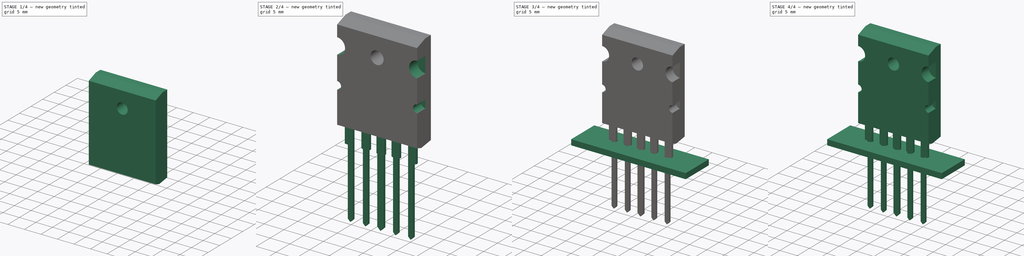
[diagram: build sequence overview — one tinted view per stage of 4, left to right]
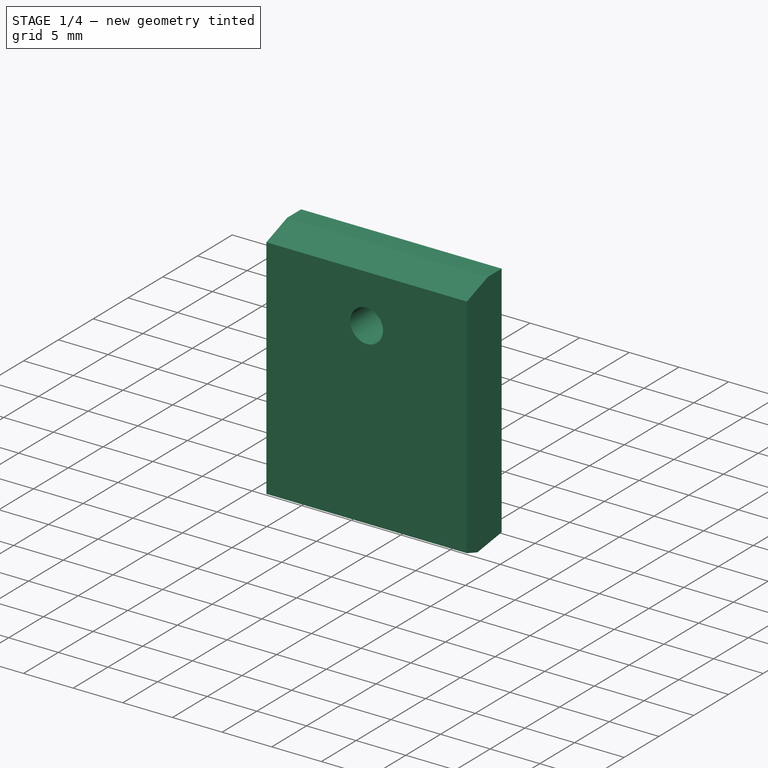
[diagram: stage 1 of 4 — iso view after this stage's code; geometry added in this stage tinted green]
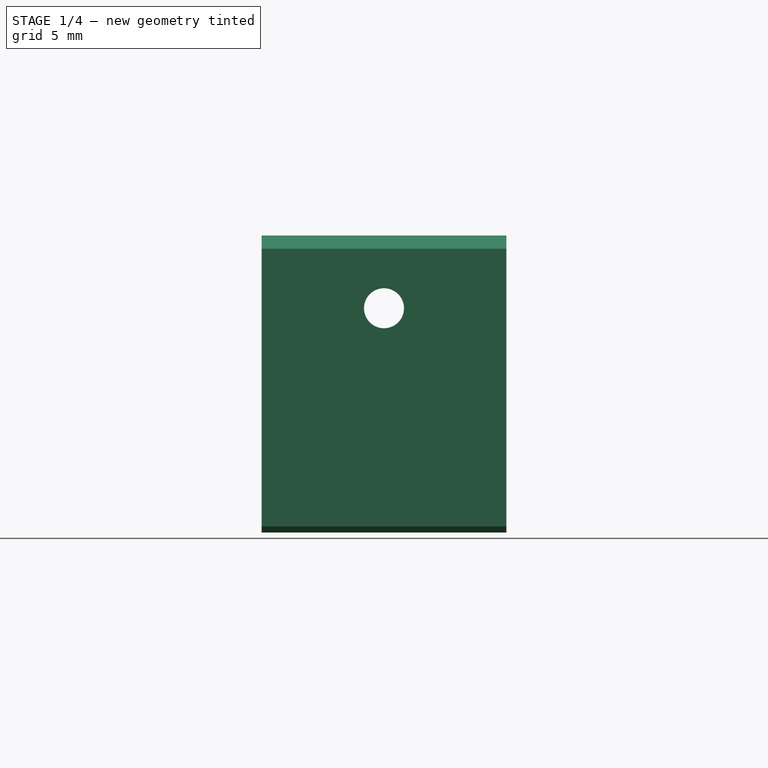
[diagram: stage 1 of 4 — front view after this stage's code; geometry added in this stage tinted green]
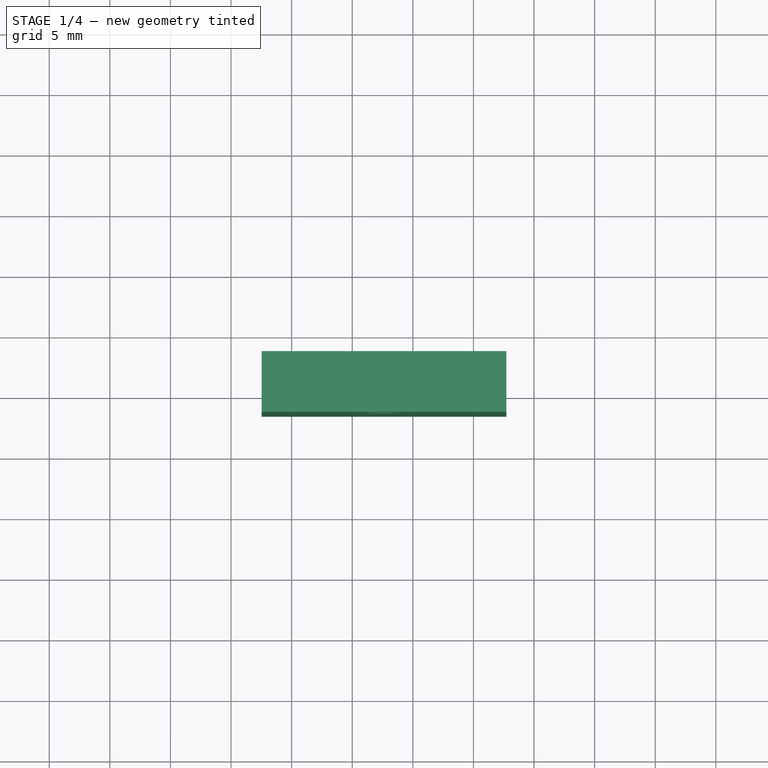
[diagram: stage 1 of 4 — top view after this stage's code; geometry added in this stage tinted green]
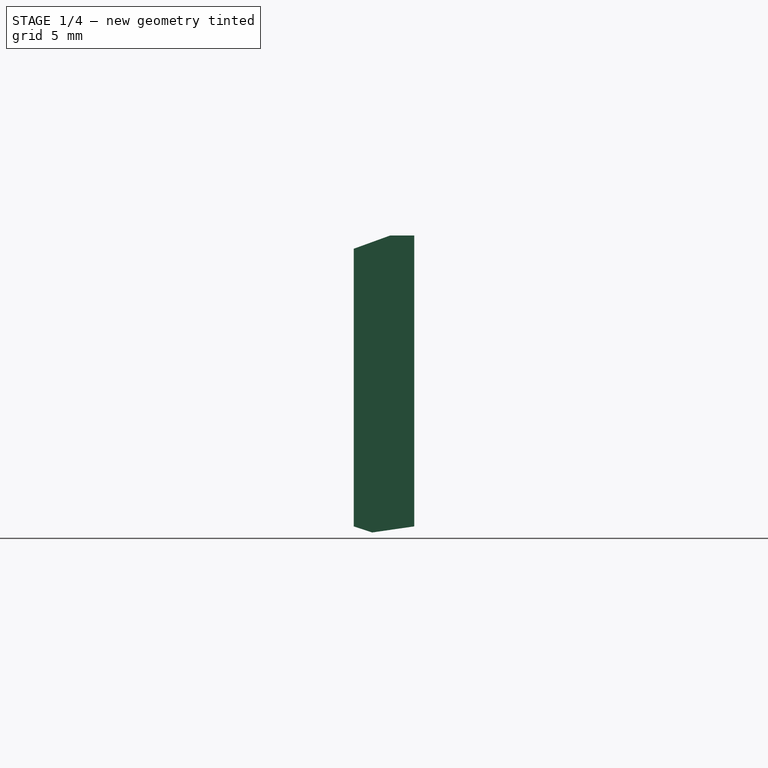
[diagram: stage 1 of 4 — right view after this stage's code; geometry added in this stage tinted green]
FCSTD DOCUMENT  (FreeCAD 0.16R6712 (Git))
Label: TO-264-5_Vertical
License: All rights reserved
LicenseURL: http://en.wikipedia.org/wiki/All_rights_reserved
objects: Part::FeaturePython×7, Sketcher::SketchObject×6, PartDesign::Pad×3, PartDesign::Pocket×3, App::DocumentObjectGroup×1, Part::MultiFuse×1
note: 26 computed .brp shape members not serialized (recipe doc carries the construction recipe); baked Part::Feature solids carry a one-line shape summary decoded from their .brp

FEATURE [Sketcher::SketchObject] Sketch001
  Placement = pos=(7.62,0,0) rot=(0.57735,0.57735,0.57735;2.0944rad)
  expr: Placement.Base.x = 2 * 3.81
  expr: Constraints[16] = 20 + 6 - 1.5
  expr: Constraints[13] = (2.5 + 3.1) / 2 + (0.5 + 0.85) / 2
  sketch-geometry (7):
    g0: LineSegment StartX=0 StartY=4 StartZ=0 EndX=-1.525 EndY=4.5 EndZ=0
    g1: LineSegment StartX=-1.525 StartY=4.5 StartZ=0 EndX=-1.525 EndY=27.4081 EndZ=0
    g2: LineSegment StartX=-1.525 StartY=27.4081 StartZ=0 EndX=1.475 EndY=28.5 EndZ=0
    g3: LineSegment StartX=1.475 StartY=28.5 StartZ=0 EndX=3.475 EndY=28.5 EndZ=0
    g4: LineSegment StartX=3.475 StartY=28.5 StartZ=0 EndX=3.475 EndY=4.5 EndZ=0
    g5: LineSegment StartX=3.475 StartY=4.5 StartZ=0 EndX=0 EndY=4 EndZ=0
    g6: LineSegment [constr] StartX=-1.525 StartY=4.5 StartZ=0 EndX=3.475 EndY=4.5 EndZ=0
  constraints (20):
    c: PointOnObject(g0,g-2)
    c: Coincident(g1,g0)
    c: Vertical(g1)
    c: Coincident(g2,g1)
    c: Horizontal(g3)
    c: Coincident(g4,g3)
    c: Vertical(g4)
    c: Coincident(g5,g4)
    c: Coincident(g5,g0)
    c: Coincident(g6,g0)
    c: Coincident(g6,g4)
    c: Horizontal(g6)
    c: Angle(g1,g2) = 1.91986
    c: DistanceX(g0,g4) = 3.475
    c: DistanceX(g1,g3) = 5
    c: DistanceY(g0,g4) = 0.5
    c: DistanceY(g0,g3) = 24.5
    c: Coincident(g2,g3)
    c: DistanceY(g-1,g0) = 4
    c: DistanceX(g2,g3) = 2
FEATURE [PartDesign::Pad] Pad001
  Length = 20.2
  Length2 = 100
  Midplane = true
  Placement = pos=(7.62,0,0) rot=(0.57735,0.57735,0.57735;2.0944rad)
  Sketch = -> Sketch001
  Type = 0
FEATURE [Sketcher::SketchObject] Sketch007
  ExternalGeometry = -> [Pad001]
  Placement = pos=(7.62,3.475,0) rot=(0.57735,0.57735,0.57735;4.18879rad)
  Support = -> Pad001 [Face5]
  expr: Placement.Base.x = 2 * 3.81
  expr: Constraints[48] = 7.2 / 2
  sketch-geometry (18):
    g0: LineSegment StartX=7.18 StartY=9 StartZ=0 EndX=7.18 EndY=-9 EndZ=0
    g1: LineSegment [constr] StartX=7.18 StartY=-9 StartZ=0 EndX=27.5 EndY=-9 EndZ=0
    g2: LineSegment StartX=27.5 StartY=-9 StartZ=0 EndX=27.5 EndY=-6 EndZ=0
    g3: LineSegment StartX=27.5 StartY=-6 StartZ=0 EndX=27.25 EndY=-6 EndZ=0
    g4: LineSegment StartX=27.25 StartY=-6 StartZ=0 EndX=27.25 EndY=6 EndZ=0
    g5: LineSegment StartX=27.25 StartY=6 StartZ=0 EndX=27.5 EndY=6 EndZ=0
    g6: LineSegment StartX=27.5 StartY=6 StartZ=0 EndX=27.5 EndY=9 EndZ=0
    g7: LineSegment [constr] StartX=27.5 StartY=9 StartZ=0 EndX=7.18 EndY=9 EndZ=0
    g8: ArcOfCircle CenterX=22.5 CenterY=9 CenterZ=0 NormalX=0 NormalY=0 NormalZ=1 Radius=1.5 StartAngle=3.14159 EndAngle=6.28319
    g9: LineSegment StartX=21 StartY=9 StartZ=0 EndX=7.18 EndY=9 EndZ=0
    g10: LineSegment StartX=24 StartY=9 StartZ=0 EndX=27.5 EndY=9 EndZ=0
    g11: ArcOfCircle CenterX=22.5 CenterY=-9 CenterZ=0 NormalX=0 NormalY=0 NormalZ=1 Radius=1.5 StartAngle=0 EndAngle=3.14159
    g12: LineSegment StartX=21 StartY=-9 StartZ=0 EndX=7.18 EndY=-9 EndZ=0
    g13: LineSegment StartX=24 StartY=-9 StartZ=0 EndX=27.5 EndY=-9 EndZ=0
    g14: LineSegment [constr] StartX=22.5 StartY=9 StartZ=0 EndX=22.5 EndY=-9 EndZ=0
    g15: GeomPoint [constr] X=27.25 Y=0 Z=0
    g16: GeomPoint [constr] X=7.18 Y=0 Z=0
    g17: Circle CenterX=22.5 CenterY=0 CenterZ=0 NormalX=0 NormalY=0 NormalZ=1 Radius=3.6
  constraints (49):
    c: Vertical(g0)
    c: Coincident(g1,g0)
    c: Coincident(g2,g1)
    c: Vertical(g2)
    c: Coincident(g3,g2)
    c: Coincident(g4,g3)
    c: Vertical(g4)
    c: Coincident(g5,g4)
    c: Horizontal(g5)
    c: Coincident(g6,g5)
    c: Vertical(g6)
    c: Coincident(g7,g6)
    c: Coincident(g7,g0)
    c: Horizontal(g3)
    c: PointOnObject(g8,g7)
    c: PointOnObject(g8,g7)
    c: PointOnObject(g8,g7)
    c: Coincident(g9,g8)
    c: Coincident(g9,g0)
    c: Horizontal(g9)
    c: Coincident(g10,g8)
    c: Coincident(g10,g6)
    c: PointOnObject(g11,g1)
    c: PointOnObject(g11,g1)
    c: PointOnObject(g11,g1)
    c: Coincident(g12,g11)
    c: Coincident(g12,g0)
    c: Horizontal(g12)
    c: Coincident(g13,g11)
    c: Coincident(g13,g1)
    c: Equal(g8,g11)
    c: Coincident(g14,g8)
    c: Coincident(g14,g11)
    c: Vertical(g14)
    c: PointOnObject(g15,g-1)
    c: Symmetric(g4,g4,g15)
    c: DistanceY(g4,g4) = 12
    c: DistanceY(g0,g0) = 18
    c: PointOnObject(g16,g-1)
    c: Symmetric(g0,g0,g16)
    c: Radius(g8) = 1.5
    c: DistanceX(g8,g-3) = 6
    c: DistanceX(g0,g-3) = 21.32
    c: DistanceX(g1,g-3) = 1
    c: Equal(g3,g5)
    c: DistanceX(g5,g5) = 0.25
    c: PointOnObject(g17,g14)
    c: Symmetric(g14,g14,g17)
    c: Radius(g17) = 3.6
FEATURE [PartDesign::Pocket] Pocket
  Length = 0.5
  Placement = pos=(7.62,0,0) rot=(0.57735,0.57735,0.57735;2.0944rad)
  Sketch = -> Sketch007
  Type = 0
FEATURE [Sketcher::SketchObject] Sketch008
  ExternalGeometry = -> [Pocket]
  Placement = pos=(7.62,-1.525,0) rot=(0.57735,0.57735,-0.57735;2.0944rad)
  Support = -> Pocket [Face3]
  expr: Constraints[1] = 3.3 / 2
  sketch-geometry (1):
    g0: Circle CenterX=-22.5 CenterY=0 CenterZ=0 NormalX=0 NormalY=0 NormalZ=1 Radius=1.65
  constraints (3):
    c: PointOnObject(g0,g-1)
    c: Radius(g0) = 1.65
    c: DistanceX(g-3,g0) = 6
FEATURE [PartDesign::Pocket] Pocket001
  Length = 5
  Placement = pos=(7.62,0,0) rot=(0.57735,0.57735,0.57735;2.0944rad)
  Sketch = -> Sketch008
  Type = 1
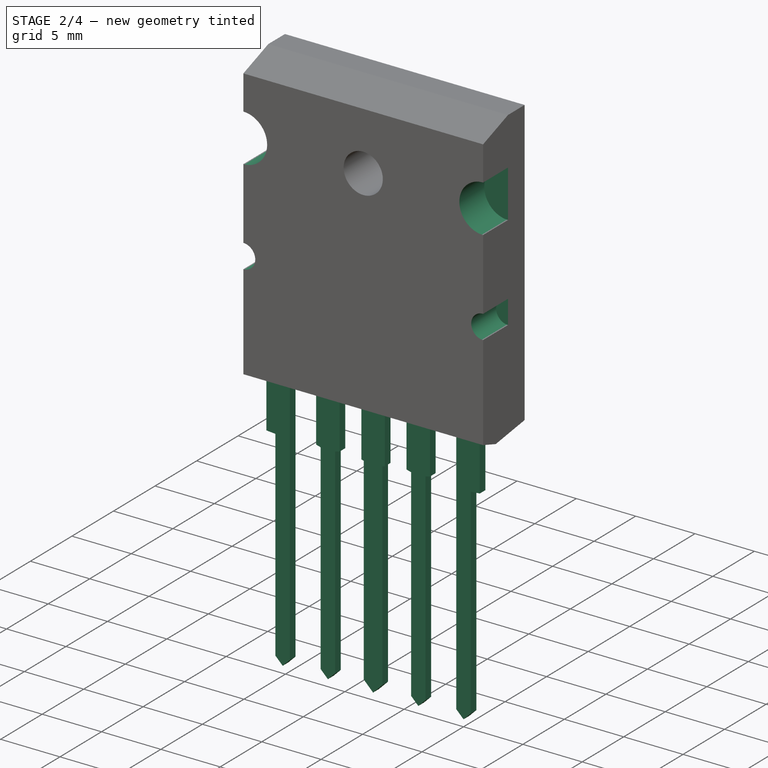
[diagram: stage 2 of 4 — iso view after this stage's code; geometry added in this stage tinted green]
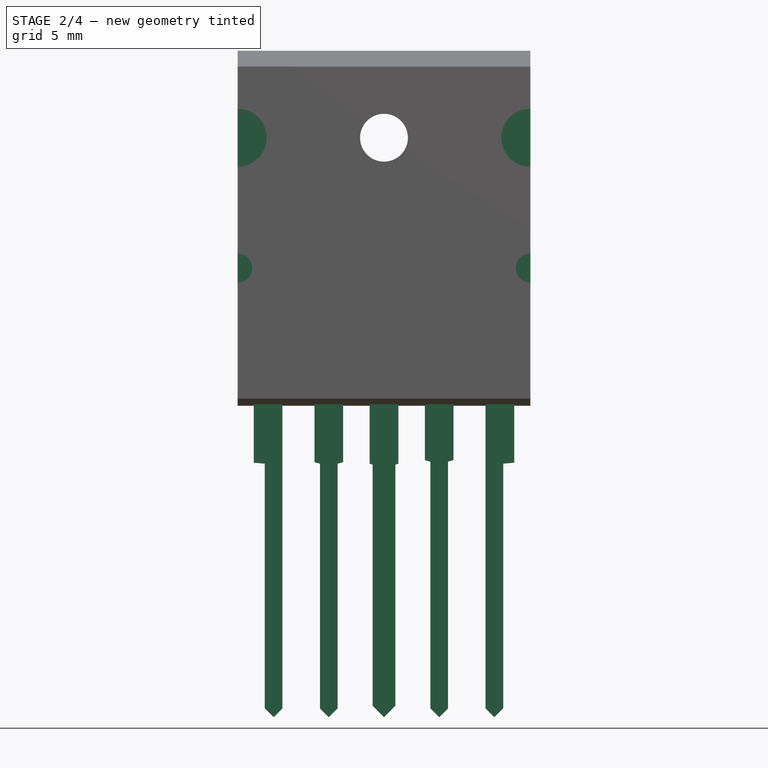
[diagram: stage 2 of 4 — front view after this stage's code; geometry added in this stage tinted green]
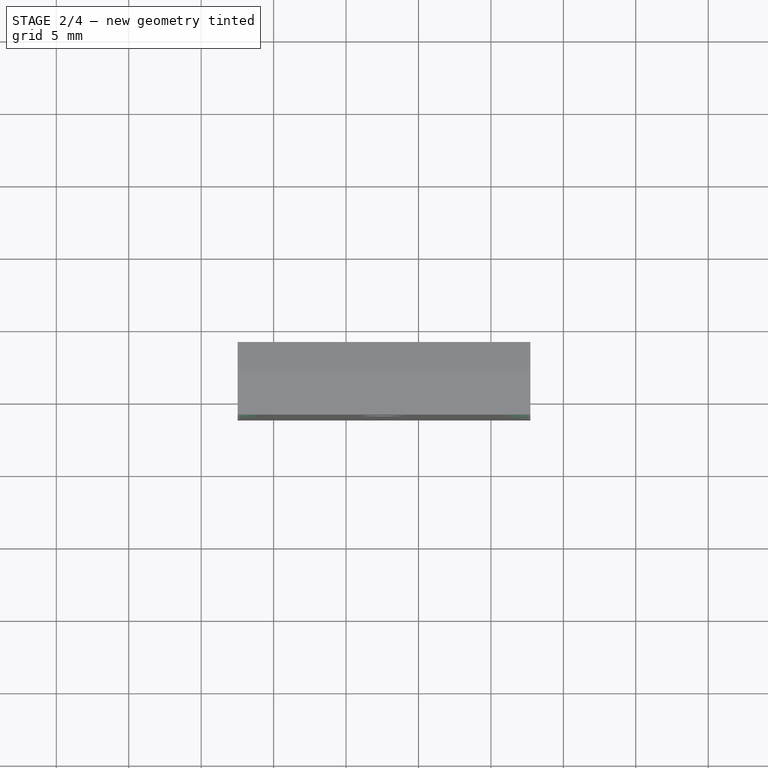
[diagram: stage 2 of 4 — top view after this stage's code; geometry added in this stage tinted green]
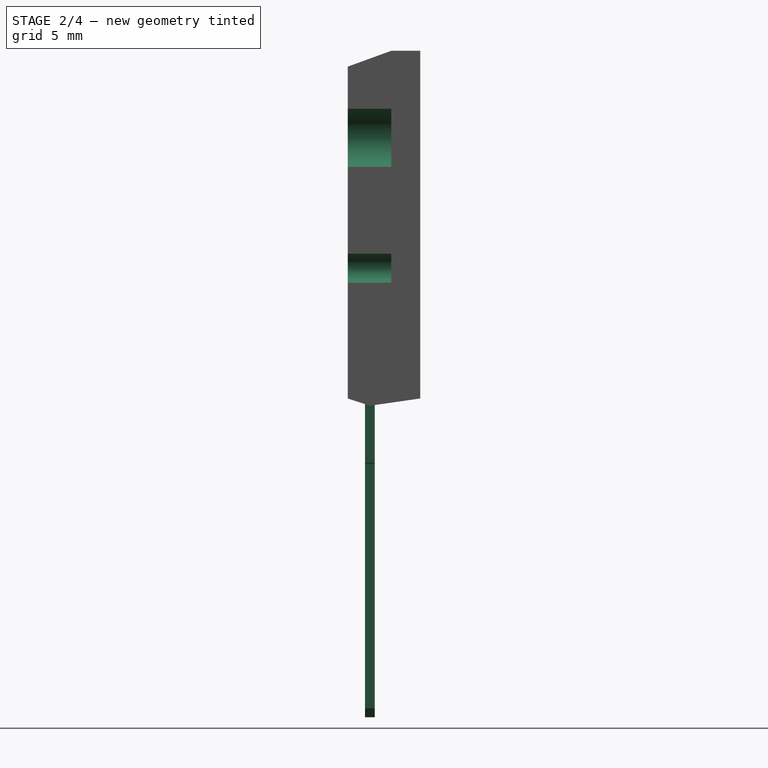
[diagram: stage 2 of 4 — right view after this stage's code; geometry added in this stage tinted green]
FEATURE [Sketcher::SketchObject] Sketch
  Placement = pos=(0,0,0) rot=(1,0,0;1.5708rad)
  expr: Constraints[24] = 20 - 2.5
  expr: Constraints[21] = 5
  sketch-geometry (85):
    g0: LineSegment [constr] StartX=-0.6095 StartY=0 StartZ=0 EndX=0.6095 EndY=0 EndZ=0
    g1: LineSegment [constr] StartX=-1.3715 StartY=0.0666664 StartZ=0 EndX=0.6095 EndY=0.0666664 EndZ=0
    g2: GeomPoint [constr] X=0 Y=0.0842038 Z=0
    g3: LineSegment [constr] StartX=-0.6095 StartY=-16.8905 StartZ=0 EndX=0.6095 EndY=-16.8905 EndZ=0
    g4: GeomPoint [constr] X=0 Y=-16.8905 Z=0
    g5: LineSegment StartX=-1.3715 StartY=0.0666664 StartZ=0 EndX=-0.6095 EndY=0 EndZ=0
    g6: LineSegment StartX=-0.6095 StartY=0 StartZ=0 EndX=-0.6095 EndY=-16.8905 EndZ=0
    g7: LineSegment StartX=-0.6095 StartY=-16.8905 StartZ=0 EndX=0 EndY=-17.5 EndZ=0
    g8: LineSegment StartX=0 StartY=-17.5 StartZ=0 EndX=0.6095 EndY=-16.8905 EndZ=0
    g9: LineSegment StartX=0.6095 StartY=-16.8905 StartZ=0 EndX=0.6095 EndY=0 EndZ=0
    g10: LineSegment StartX=0.6095 StartY=0 StartZ=0 EndX=0.6095 EndY=0.0666664 EndZ=0
    g11: LineSegment StartX=0.6095 StartY=0.0666664 StartZ=0 EndX=0.6095 EndY=5 EndZ=0
    g12: LineSegment StartX=0.6095 StartY=5 StartZ=0 EndX=-1.3715 EndY=5 EndZ=0
    g13: LineSegment StartX=-1.3715 StartY=5 StartZ=0 EndX=-1.3715 EndY=0.0666664 EndZ=0
    g14: LineSegment [constr] StartX=0 StartY=-17.5 StartZ=0 EndX=0 EndY=0.0842038 EndZ=0
    g15: LineSegment [constr] StartX=3.2005 StartY=0 StartZ=0 EndX=4.4195 EndY=0 EndZ=0
    g16: LineSegment [constr] StartX=2.8195 StartY=0.102089 StartZ=0 EndX=4.8005 EndY=0.102089 EndZ=0
    g17: GeomPoint [constr] X=3.81 Y=0.102089 Z=0
    g18: LineSegment [constr] StartX=3.2005 StartY=-16.8905 StartZ=0 EndX=4.4195 EndY=-16.8905 EndZ=0
    g19: GeomPoint [constr] X=3.81 Y=-16.8905 Z=0
    g20: LineSegment StartX=2.8195 StartY=0.102089 StartZ=0 EndX=3.2005 EndY=0 EndZ=0
    g21: LineSegment StartX=3.2005 StartY=0 StartZ=0 EndX=3.2005 EndY=-16.8905 EndZ=0
    g22: LineSegment StartX=3.2005 StartY=-16.8905 StartZ=0 EndX=3.81 EndY=-17.5 EndZ=0
    g23: LineSegment StartX=3.81 StartY=-17.5 StartZ=0 EndX=4.4195 EndY=-16.8905 EndZ=0
    g24: LineSegment StartX=4.4195 StartY=-16.8905 StartZ=0 EndX=4.4195 EndY=0 EndZ=0
    g25: LineSegment StartX=4.4195 StartY=0 StartZ=0 EndX=4.8005 EndY=0.102089 EndZ=0
    g26: LineSegment StartX=4.8005 StartY=0.102089 StartZ=0 EndX=4.8005 EndY=5 EndZ=0
    g27: LineSegment StartX=4.8005 StartY=5 StartZ=0 EndX=2.8195 EndY=5 EndZ=0
    g28: LineSegment StartX=2.8195 StartY=5 StartZ=0 EndX=2.8195 EndY=0.102089 EndZ=0
    g29: LineSegment [constr] StartX=3.81 StartY=-17.5 StartZ=0 EndX=3.81 EndY=0.102089 EndZ=0
    g30: LineSegment [constr] StartX=14.6305 StartY=0 StartZ=0 EndX=15.8495 EndY=0 EndZ=0
    g31: LineSegment [constr] StartX=14.6305 StartY=0.0666664 StartZ=0 EndX=16.6115 EndY=0.0666664 EndZ=0
    g32: GeomPoint [constr] X=15.24 Y=0.0842078 Z=0
    g33: LineSegment [constr] StartX=14.6305 StartY=-16.8905 StartZ=0 EndX=15.8495 EndY=-16.8905 EndZ=0
    g34: GeomPoint [constr] X=15.24 Y=-16.8905 Z=0
    g35: LineSegment StartX=14.6305 StartY=0.0666664 StartZ=0 EndX=14.6305 EndY=0 EndZ=0
    g36: LineSegment StartX=14.6305 StartY=0 StartZ=0 EndX=14.6305 EndY=-16.8905 EndZ=0
    g37: LineSegment StartX=14.6305 StartY=-16.8905 StartZ=0 EndX=15.24 EndY=-17.5 EndZ=0
    g38: LineSegment StartX=15.24 StartY=-17.5 StartZ=0 EndX=15.8495 EndY=-16.8905 EndZ=0
    g39: LineSegment StartX=15.8495 StartY=-16.8905 StartZ=0 EndX=15.8495 EndY=0 EndZ=0
    g40: LineSegment StartX=15.8495 StartY=0 StartZ=0 EndX=16.6115 EndY=0.0666664 EndZ=0
    g41: LineSegment StartX=16.6115 StartY=0.0666664 StartZ=0 EndX=16.6115 EndY=5 EndZ=0
    g42: LineSegment StartX=16.6115 StartY=5 StartZ=0 EndX=14.6305 EndY=5 EndZ=0
    g43: LineSegment StartX=14.6305 StartY=5 StartZ=0 EndX=14.6305 EndY=0.0666664 EndZ=0
    g44: LineSegment [constr] StartX=15.24 StartY=-17.5 StartZ=0 EndX=15.24 EndY=0.0842078 EndZ=0
    g45: GeomPoint [constr] X=3.81 Y=0 Z=0
    g46: GeomPoint [constr] X=15.24 Y=0 Z=0
    g47: LineSegment [constr] StartX=-1.3715 StartY=5 StartZ=0 EndX=14.6305 EndY=5 EndZ=0
    g48: GeomPoint [constr] X=0 Y=0 Z=0
    g49: LineSegment [constr] StartX=6.83301 StartY=-0.0599057 StartZ=0 EndX=8.40699 EndY=-0.0599057 EndZ=0
    g50: LineSegment [constr] StartX=6.6295 StartY=-0.00537522 StartZ=0 EndX=8.6105 EndY=-0.00537522 EndZ=0
    g51: GeomPoint [constr] X=7.62 Y=-0.00537522 Z=0
    g52: LineSegment [constr] StartX=6.83301 StartY=-16.713 StartZ=0 EndX=8.40699 EndY=-16.713 EndZ=0
    g53: GeomPoint [constr] X=7.62 Y=-16.713 Z=0
    g54: LineSegment StartX=6.6295 StartY=-0.00537522 StartZ=0 EndX=6.83301 EndY=-0.0599057 EndZ=0
    g55: LineSegment StartX=6.83301 StartY=-0.0599057 StartZ=0 EndX=6.83301 EndY=-16.713 EndZ=0
    g56: LineSegment StartX=6.83301 StartY=-16.713 StartZ=0 EndX=7.62 EndY=-17.5 EndZ=0
    g57: LineSegment StartX=7.62 StartY=-17.5 StartZ=0 EndX=8.40699 EndY=-16.713 EndZ=0
    g58: LineSegment StartX=8.40699 StartY=-16.713 StartZ=0 EndX=8.40699 EndY=-0.0599057 EndZ=0
    g59: LineSegment StartX=8.40699 StartY=-0.0599057 StartZ=0 EndX=8.6105 EndY=-0.00537522 EndZ=0
    g60: LineSegment StartX=8.6105 StartY=-0.00537522 StartZ=0 EndX=8.6105 EndY=4.89285 EndZ=0
    g61: LineSegment StartX=8.6105 StartY=4.89285 StartZ=0 EndX=6.6295 EndY=4.89285 EndZ=0
    g62: LineSegment StartX=6.6295 StartY=4.89285 StartZ=0 EndX=6.6295 EndY=-0.00537522 EndZ=0
    g63: LineSegment [constr] StartX=7.62 StartY=-17.5 StartZ=0 EndX=7.62 EndY=-0.00537522 EndZ=0
    g64: GeomPoint [constr] X=7.62 Y=-0.0599057 Z=0
    g65: LineSegment [constr] StartX=10.8197 StartY=0.14073 StartZ=0 EndX=12.0403 EndY=0.14073 EndZ=0
    g66: LineSegment [constr] StartX=10.4395 StartY=0.242606 StartZ=0 EndX=12.4205 EndY=0.242606 EndZ=0
    g67: GeomPoint [constr] X=11.43 Y=0.242606 Z=0
    g68: LineSegment [constr] StartX=10.8197 StartY=-16.8897 StartZ=0 EndX=12.0403 EndY=-16.8897 EndZ=0
    g69: GeomPoint [constr] X=11.43 Y=-16.8897 Z=0
    g70: LineSegment StartX=10.4395 StartY=0.242606 StartZ=0 EndX=10.8197 EndY=0.14073 EndZ=0
    g71: LineSegment StartX=10.8197 StartY=0.14073 StartZ=0 EndX=10.8197 EndY=-16.8897 EndZ=0
    g72: LineSegment StartX=10.8197 StartY=-16.8897 StartZ=0 EndX=11.43 EndY=-17.5 EndZ=0
    g73: LineSegment StartX=11.43 StartY=-17.5 StartZ=0 EndX=12.0403 EndY=-16.8897 EndZ=0
    g74: LineSegment StartX=12.0403 StartY=-16.8897 StartZ=0 EndX=12.0403 EndY=0.14073 EndZ=0
    g75: LineSegment StartX=12.0403 StartY=0.14073 StartZ=0 EndX=12.4205 EndY=0.242606 EndZ=0
    g76: LineSegment StartX=12.4205 StartY=0.242606 StartZ=0 EndX=12.4205 EndY=5.13989 EndZ=0
    g77: LineSegment StartX=12.4205 StartY=5.13989 StartZ=0 EndX=10.4395 EndY=5.13989 EndZ=0
    g78: LineSegment StartX=10.4395 StartY=5.13989 StartZ=0 EndX=10.4395 EndY=0.242606 EndZ=0
    g79: LineSegment [constr] StartX=11.43 StartY=-17.5 StartZ=0 EndX=11.43 EndY=0.242606 EndZ=0
    g80: GeomPoint [constr] X=11.43 Y=0.14073 Z=0
    g81: LineSegment [constr] StartX=0 StartY=-17.5 StartZ=0 EndX=3.81 EndY=-17.5 EndZ=0
    g82: LineSegment [constr] StartX=3.81 StartY=-17.5 StartZ=0 EndX=7.62 EndY=-17.5 EndZ=0
    g83: LineSegment [constr] StartX=7.62 StartY=-17.5 StartZ=0 EndX=11.43 EndY=-17.5 EndZ=0
    g84: LineSegment [constr] StartX=11.43 StartY=-17.5 StartZ=0 EndX=15.24 EndY=-17.5 EndZ=0
  constraints (194):
    c: DistanceX(g0,g0) = 1.219
    c: Horizontal(g1)
    c: PointOnObject(g2,g-2)
    c: Horizontal(g3)
    c: Equal(g0,g3) = 0.8
    c: PointOnObject(g4,g-2)
    c: Symmetric(g3,g3,g4)
    c: Coincident(g5,g1)
    c: Coincident(g5,g0)
    c: Coincident(g6,g0)
    c: Coincident(g6,g3)
    c: Coincident(g7,g3)
    c: Coincident(g8,g7)
    c: Coincident(g8,g3)
    c: PointOnObject(g7,g-2)
    c: Coincident(g9,g3)
    c: Coincident(g9,g0)
    c: Coincident(g10,g0)
    c: Coincident(g10,g1)
    c: Horizontal(g12)
    c: Angle(g9,g8) = 2.35619
    c: DistanceY(g-1,g12) = 5
    c: Coincident(g14,g7)
    c: Coincident(g14,g2)
    c: DistanceY(g7,g-1) = 17.5
    c: Horizontal(g15)
    c: Equal(g0,g15) = 0.8
    c: Horizontal(g16)
    c: Symmetric(g16,g16,g17)
    c: Horizontal(g18)
    c: Equal(g15,g18) = 0.8
    c: Symmetric(g18,g18,g19)
    c: Coincident(g20,g16)
    c: Coincident(g20,g15)
    c: Coincident(g21,g15)
    c: Coincident(g21,g18)
    c: Coincident(g22,g18)
    c: Coincident(g23,g22)
    c: Coincident(g23,g18)
    c: Coincident(g24,g18)
    c: Coincident(g24,g15)
    c: Coincident(g25,g24)
    c: Coincident(g25,g16)
    c: Horizontal(g27)
    c: Angle(g20,g28) = 1.8326
    c: Angle(g24,g23) = 2.35619
    c: Coincident(g29,g22)
    c: Coincident(g29,g17)
    c: Horizontal(g30)
    c: Equal(g0,g30) = 0.8
    c: Horizontal(g31)
    c: Horizontal(g33)
    c: Equal(g30,g33) = 0.8
    c: Symmetric(g33,g33,g34)
    c: Coincident(g35,g31)
    c: Coincident(g35,g30)
    c: Coincident(g36,g30)
    c: Coincident(g36,g33)
    c: Coincident(g37,g33)
    c: Coincident(g38,g37)
    c: Coincident(g38,g33)
    c: Coincident(g39,g33)
    c: Coincident(g39,g30)
    c: Coincident(g40,g30)
    c: Coincident(g40,g31)
    c: Horizontal(g42)
    c: Angle(g39,g38) = 2.35619
    c: Coincident(g44,g37)
    c: Coincident(g44,g32)
    c: PointOnObject(g15,g-1)
    c: PointOnObject(g45,g29)
    c: Symmetric(g15,g15,g45)
    c: Vertical(g29)
    c: Vertical(g44)
    c: PointOnObject(g46,g44)
    c: Symmetric(g30,g30,g46)
    c: PointOnObject(g19,g29)
    c: PointOnObject(g34,g44)
    c: DistanceX(g7,g22) = 3.81
    c: PointOnObject(g30,g-1)
    c: Coincident(g47,g12)
    c: Coincident(g47,g42)
    c: Horizontal(g47)
    c: PointOnObject(g27,g47)
    c: Coincident(g1,g13)
    c: Coincident(g12,g13)
    c: Coincident(g11,g12)
    c: Coincident(g1,g11)
    c: Vertical(g11)
    c: Vertical(g13)
    c: Coincident(g42,g43)
    c: Coincident(g41,g42)
    c: Coincident(g26,g27)
    c: Coincident(g27,g28)
    c: Coincident(g16,g28)
    c: Coincident(g16,g26)
    c: Vertical(g26)
    c: Vertical(g28)
    c: Coincident(g31,g43)
    c: Coincident(g31,g41)
    c: Vertical(g43)
    c: Vertical(g41)
    c: DistanceX(g27,g27) = 1.981
    c: DistanceX(g12,g12) = 1.981
    c: Equal(g12,g42)
    c: Horizontal(g0)
    c: PointOnObject(g48,g14)
    c: Symmetric(g0,g0,g48)
    c: Coincident(g48,g-1)
    c: Vertical(g35)
    c: Angle(g41,g40) = 1.65806
    c: Angle(g5,g13) = 1.65806
    c: Vertical(g10)
    c: Horizontal(g49)
    c: Horizontal(g50)
    c: Symmetric(g50,g50,g51)
    c: Horizontal(g52)
    c: Equal(g49,g52) = 0.8
    c: Symmetric(g52,g52,g53)
    c: Coincident(g54,g50)
    c: Coincident(g54,g49)
    c: Coincident(g55,g49)
    c: Coincident(g55,g52)
    c: Coincident(g56,g52)
    c: Coincident(g57,g56)
    c: Coincident(g57,g52)
    c: Coincident(g58,g52)
    c: Coincident(g58,g49)
    c: Coincident(g59,g58)
    c: Coincident(g59,g50)
    c: Horizontal(g61)
    c: Angle(g54,g62) = 1.8326
    c: Angle(g58,g57) = 2.35619
    c: Coincident(g63,g56)
    c: Coincident(g63,g51)
    c: PointOnObject(g64,g63)
    c: Symmetric(g49,g49,g64)
    c: Vertical(g63)
    c: PointOnObject(g53,g63)
    c: Coincident(g60,g61)
    c: Coincident(g61,g62)
    c: Coincident(g50,g62)
    c: Coincident(g50,g60)
    c: Vertical(g60)
    c: Vertical(g62)
    c: Equal(g27,g61) = 1.981
    c: Horizontal(g65)
    c: Horizontal(g66)
    c: Symmetric(g66,g66,g67)
    c: Horizontal(g68)
    c: Equal(g65,g68) = 0.8
    c: Symmetric(g68,g68,g69)
    c: Coincident(g70,g66)
    c: Coincident(g70,g65)
    c: Coincident(g71,g65)
    c: Coincident(g71,g68)
    c: Coincident(g72,g68)
    c: Coincident(g73,g72)
    c: Coincident(g73,g68)
    c: Coincident(g74,g68)
    c: Coincident(g74,g65)
    c: Coincident(g75,g74)
    c: Coincident(g75,g66)
    c: Horizontal(g77)
    c: Angle(g70,g78) = 1.8326
    c: Angle(g74,g73) = 2.35619
    c: Coincident(g79,g72)
    c: Coincident(g79,g67)
    c: PointOnObject(g80,g79)
    c: Symmetric(g65,g65,g80)
    c: Vertical(g79)
    c: PointOnObject(g69,g79)
    c: Coincident(g76,g77)
    c: Coincident(g77,g78)
    c: Coincident(g66,g78)
    c: Coincident(g66,g76)
    c: Vertical(g76)
    c: Vertical(g78)
    c: Equal(g27,g77) = 1.981
    c: Coincident(g81,g7)
    c: Horizontal(g81)
    c: Coincident(g82,g22)
    c: Coincident(g82,g56)
    c: Coincident(g83,g56)
    c: Coincident(g83,g72)
    c: Coincident(g84,g72)
    c: Coincident(g84,g37)
    c: Equal(g81,g82)
    c: Equal(g82,g83)
    c: Equal(g83,g84)
    c: Horizontal(g82)
    c: Horizontal(g83)
    c: Horizontal(g84)
    c: Coincident(g22,g81)
FEATURE [PartDesign::Pad] Pad
  Length = 0.675
  Length2 = 100
  Midplane = true
  Placement = pos=(0,0,0) rot=(1,0,0;1.5708rad)
  Reversed = true
  Sketch = -> Sketch
  Type = 0
  expr: Length = (0.5 + 0.85) / 2
FEATURE [Sketcher::SketchObject] Sketch005
  Placement = pos=(0,3.474,0) rot=(1,0,0;1.5708rad)
  expr: Constraints[8] = 2 * 3.81
  expr: Constraints[9] = 7 / 2
  sketch-geometry (6):
    g0: LineSegment StartX=-1.63 StartY=28 StartZ=0 EndX=16.87 EndY=28 EndZ=0
    g1: LineSegment StartX=16.87 StartY=28 StartZ=0 EndX=16.87 EndY=6 EndZ=0
    g2: LineSegment StartX=16.87 StartY=6 StartZ=0 EndX=-1.63 EndY=6 EndZ=0
    g3: LineSegment StartX=-1.63 StartY=6 StartZ=0 EndX=-1.63 EndY=28 EndZ=0
    g4: Circle CenterX=7.62 CenterY=22.5 CenterZ=0 NormalX=0 NormalY=0 NormalZ=1 Radius=3.5
    g5: LineSegment [constr] StartX=7.62 StartY=22.5 StartZ=0 EndX=7.62 EndY=28 EndZ=0
  constraints (17):
    c: Coincident(g0,g1)
    c: Coincident(g1,g2)
    c: Coincident(g2,g3)
    c: Coincident(g3,g0)
    c: Horizontal(g0)
    c: Horizontal(g2)
    c: Vertical(g1)
    c: Vertical(g3)
    c: DistanceX(g-1,g4) = 7.62
    c: Radius(g4) = 3.5
    c: DistanceY(g-1,g4) = 22.5
    c: Coincident(g5,g4)
    c: Vertical(g5)
    c: Symmetric(g0,g0,g5)
    c: DistanceY(g1,g1) = 22
    c: DistanceX(g0,g0) = 18.5
    c: DistanceY(g5,g5) = 5.5
FEATURE [PartDesign::Pad] Pad003
  Length = 1.9
  Length2 = 100
  Placement = pos=(0,3.474,0) rot=(1,0,0;1.5708rad)
  Sketch = -> Sketch005
  Type = 0
FEATURE [Sketcher::SketchObject] Sketch009
  ExternalGeometry = -> [Pocket001]
  Placement = pos=(7.62,-1.525,0) rot=(0.57735,0.57735,-0.57735;2.0944rad)
  Support = -> Pocket001 [Face3]
  sketch-geometry (10):
    g0: ArcOfCircle CenterX=-22.5 CenterY=10.1 CenterZ=0 NormalX=0 NormalY=0 NormalZ=1 Radius=2 StartAngle=3.14159 EndAngle=6.28319
    g1: LineSegment StartX=-24.5 StartY=10.1 StartZ=0 EndX=-20.5 EndY=10.1 EndZ=0
    g2: LineSegment StartX=-24.5 StartY=-10.1 StartZ=0 EndX=-20.5 EndY=-10.1 EndZ=0
    g3: ArcOfCircle CenterX=-22.5 CenterY=-10.1 CenterZ=0 NormalX=0 NormalY=0 NormalZ=1 Radius=2 StartAngle=0 EndAngle=3.14159
    g4: LineSegment [constr] StartX=-22.5 StartY=10.1 StartZ=0 EndX=-22.5 EndY=-10.1 EndZ=0
    g5: ArcOfCircle CenterX=-13.5 CenterY=10.1 CenterZ=0 NormalX=0 NormalY=0 NormalZ=1 Radius=1 StartAngle=3.14159 EndAngle=6.28319
    g6: LineSegment StartX=-14.5 StartY=10.1 StartZ=0 EndX=-12.5 EndY=10.1 EndZ=0
    g7: LineSegment StartX=-14.5 StartY=-10.1 StartZ=0 EndX=-12.5 EndY=-10.1 EndZ=0
    g8: ArcOfCircle CenterX=-13.5 CenterY=-10.1 CenterZ=0 NormalX=0 NormalY=0 NormalZ=1 Radius=1 StartAngle=0 EndAngle=3.14159
    g9: LineSegment [constr] StartX=-13.5 StartY=10.1 StartZ=0 EndX=-13.5 EndY=-10.1 EndZ=0
  constraints (32):
    c: Horizontal(g1)
    c: PointOnObject(g0,g-3)
    c: Horizontal(g2)
    c: PointOnObject(g3,g2)
    c: Coincident(g3,g2)
    c: Coincident(g3,g2)
    c: Coincident(g4,g0)
    c: Coincident(g4,g3)
    c: Vertical(g4)
    c: PointOnObject(g3,g-4)
    c: Radius(g3) = 2
    c: Equal(g3,g0)
    c: DistanceX(g-5,g3) = 6
    c: Coincident(g6,g5)
    c: Coincident(g6,g5)
    c: PointOnObject(g6,g-3)
    c: Radius(g5) = 1
    c: Horizontal(g7)
    c: PointOnObject(g8,g7)
    c: Coincident(g8,g7)
    c: Coincident(g8,g7)
    c: Equal(g8,g5)
    c: Coincident(g9,g5)
    c: Coincident(g9,g8)
    c: Vertical(g9)
    c: DistanceX(g3,g8) = 9
    c: PointOnObject(g5,g-3)
    c: PointOnObject(g5,g-3)
    c: PointOnObject(g7,g-4)
    c: Coincident(g0,g1)
    c: Coincident(g1,g0)
    c: Symmetric(g1,g1,g0)
FEATURE [PartDesign::Pocket] Pocket002
  Length = 3
  Placement = pos=(7.62,0,0) rot=(0.57735,0.57735,0.57735;2.0944rad)
  Sketch = -> Sketch009
  Type = 0
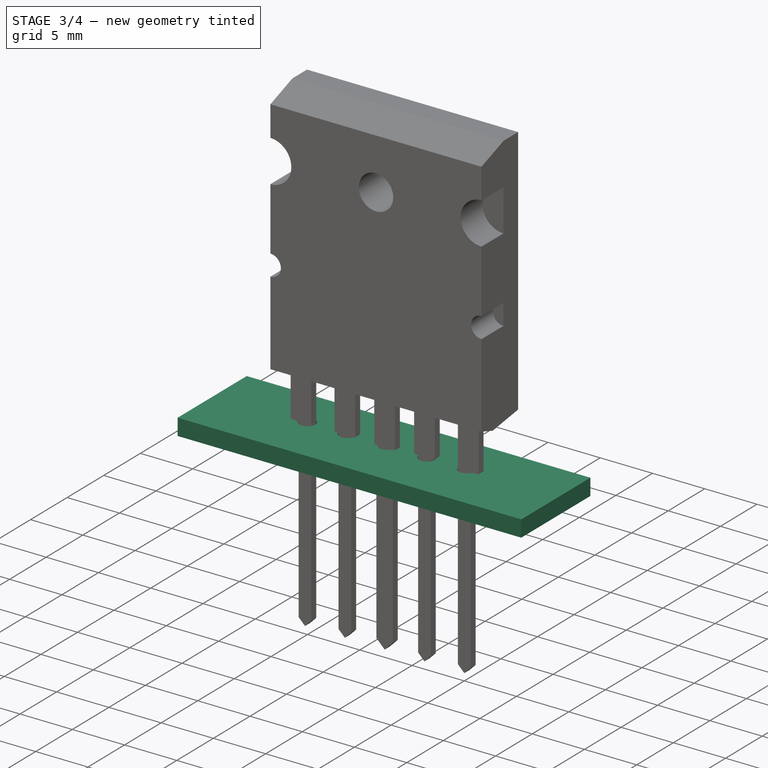
[diagram: stage 3 of 4 — iso view after this stage's code; geometry added in this stage tinted green]
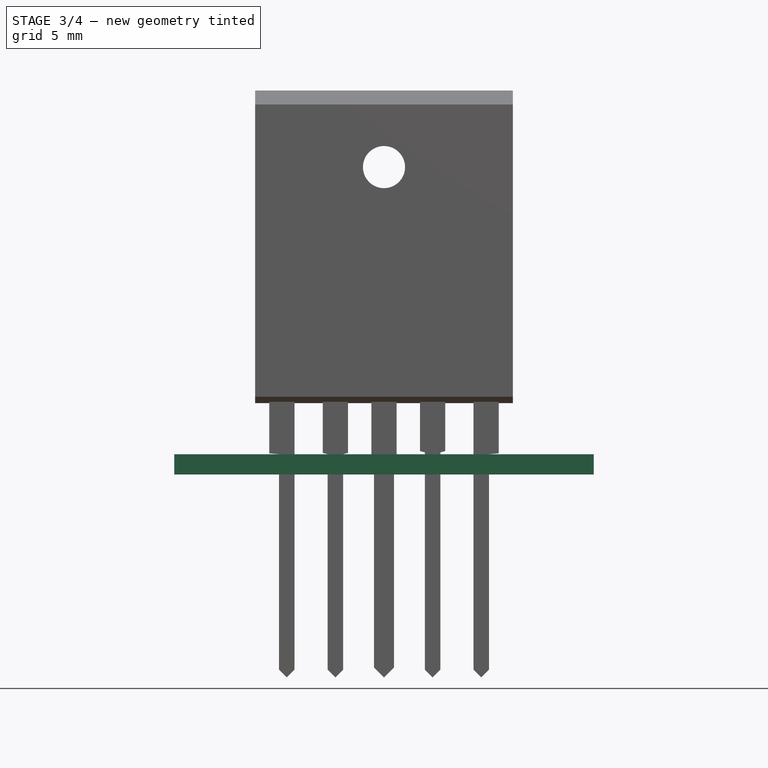
[diagram: stage 3 of 4 — front view after this stage's code; geometry added in this stage tinted green]
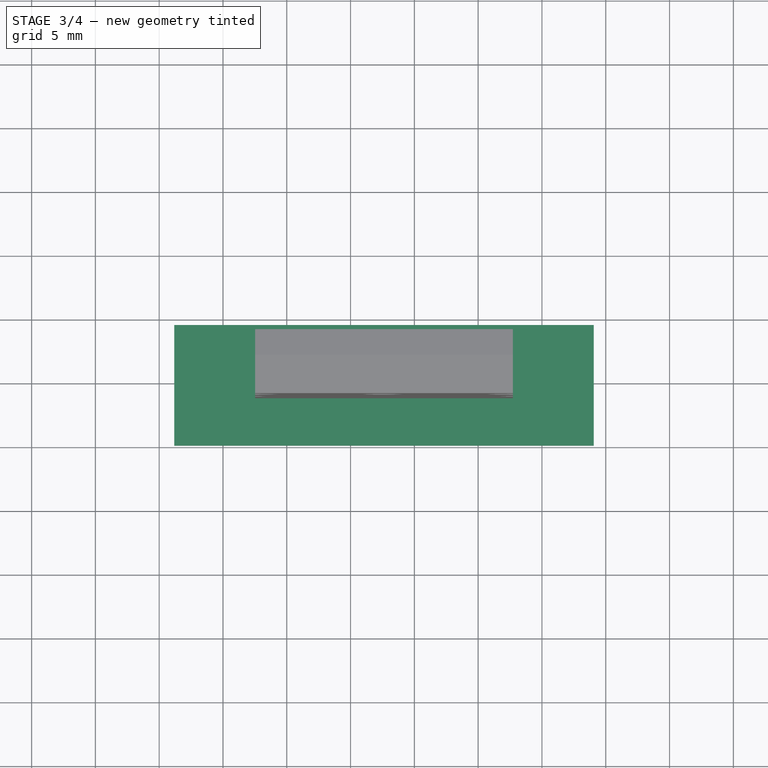
[diagram: stage 3 of 4 — top view after this stage's code; geometry added in this stage tinted green]
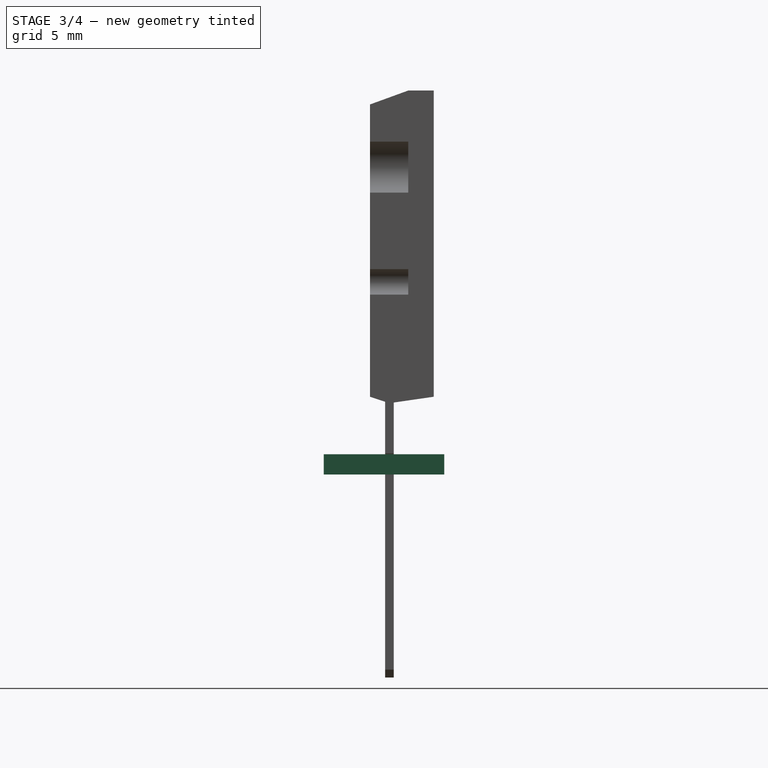
[diagram: stage 3 of 4 — right view after this stage's code; geometry added in this stage tinted green]
FEATURE [Part::FeaturePython] newPCB  label="Pcb"  # a2plus imported part (geometry in sourceFile) (typed FeaturePython)
  fixedPosition = true
FEATURE [App::DocumentObjectGroup] TO_264_5_Vertical_fp
  Group = -> [FCrtYd_lines,FFab_lines,Filk_lines,TopPads,BotPads,THPs,newPCB]
FEATURE [Part::MultiFuse] Pocket002_mp_cp  label="TO-264-5_Vertical"
  Shapes = -> [Pocket002,Pad,Pad003]
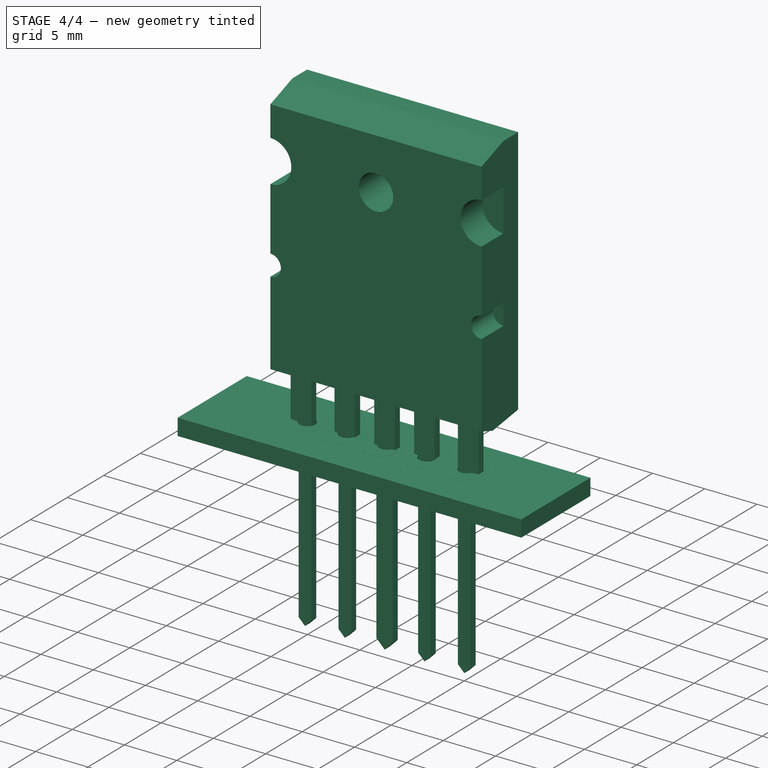
[diagram: stage 4 of 4 — iso view after this stage's code; geometry added in this stage tinted green]
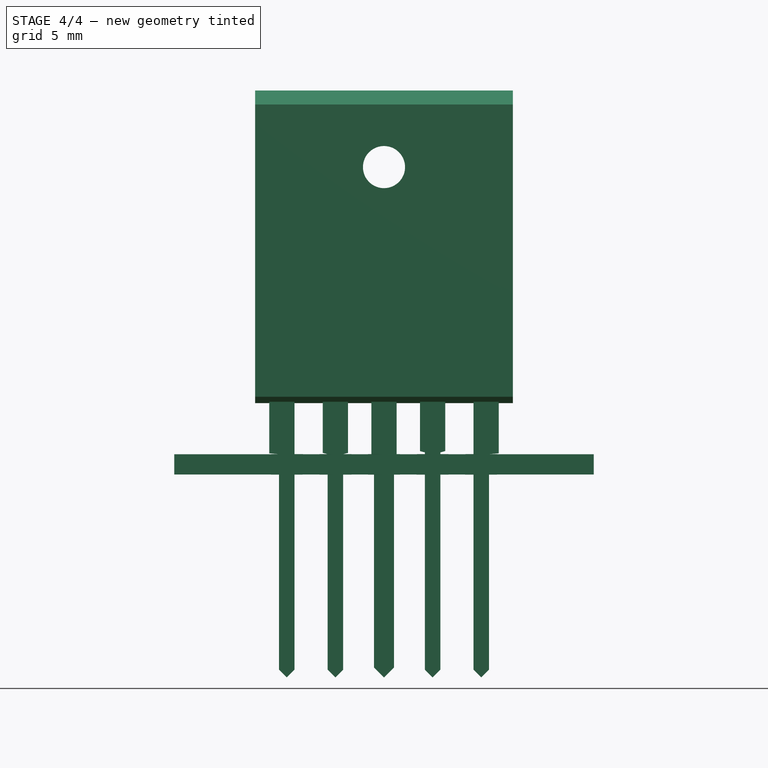
[diagram: stage 4 of 4 — front view after this stage's code; geometry added in this stage tinted green]
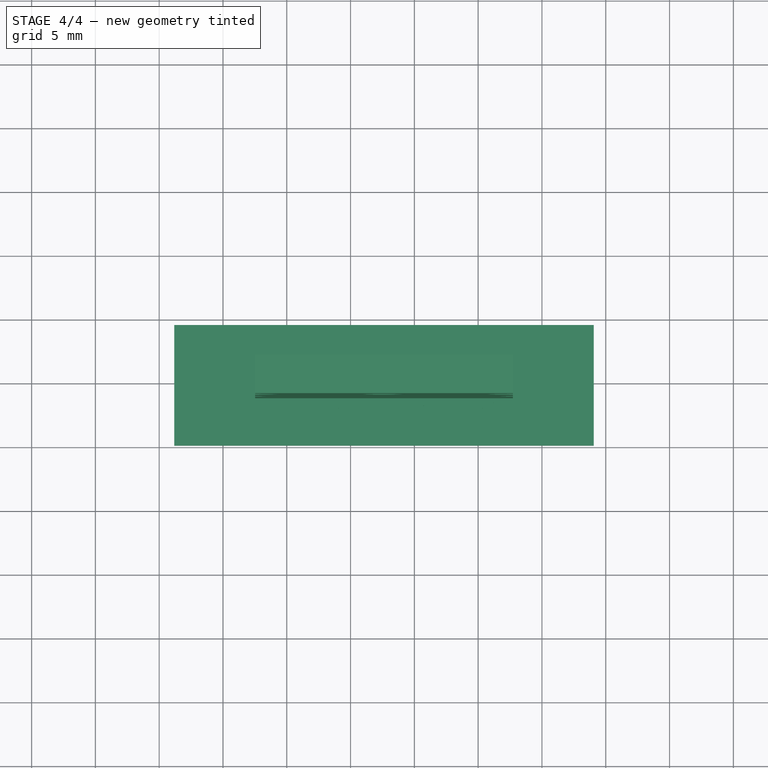
[diagram: stage 4 of 4 — top view after this stage's code; geometry added in this stage tinted green]
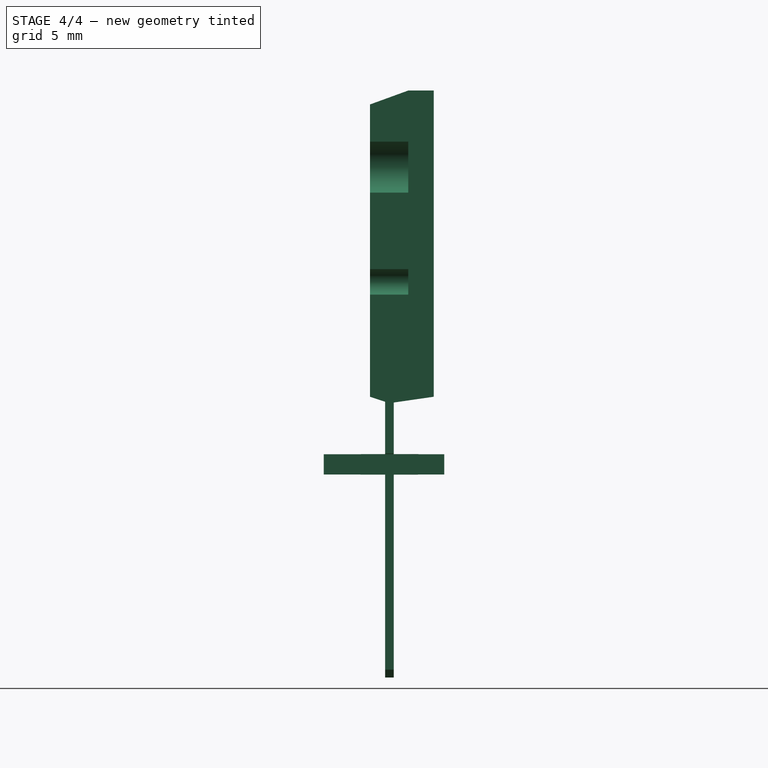
[diagram: stage 4 of 4 — right view after this stage's code; geometry added in this stage tinted green]
FEATURE [Part::FeaturePython] FCrtYd_lines  label="FCrtYd"  # a2plus imported part (geometry in sourceFile) (typed FeaturePython)
  fixedPosition = true
FEATURE [Part::FeaturePython] FFab_lines  label="FFab"  # a2plus imported part (geometry in sourceFile) (typed FeaturePython)
  fixedPosition = true
FEATURE [Part::FeaturePython] Filk_lines  label="FrontSilk"  # a2plus imported part (geometry in sourceFile) (typed FeaturePython)
  fixedPosition = true
FEATURE [Part::FeaturePython] TopPads  # a2plus imported part (geometry in sourceFile) (typed FeaturePython)
  fixedPosition = true
FEATURE [Part::FeaturePython] BotPads  # a2plus imported part (geometry in sourceFile) (typed FeaturePython)
  fixedPosition = true
FEATURE [Part::FeaturePython] THPs  label="PTHs"  # a2plus imported part (geometry in sourceFile) (typed FeaturePython)
  fixedPosition = true
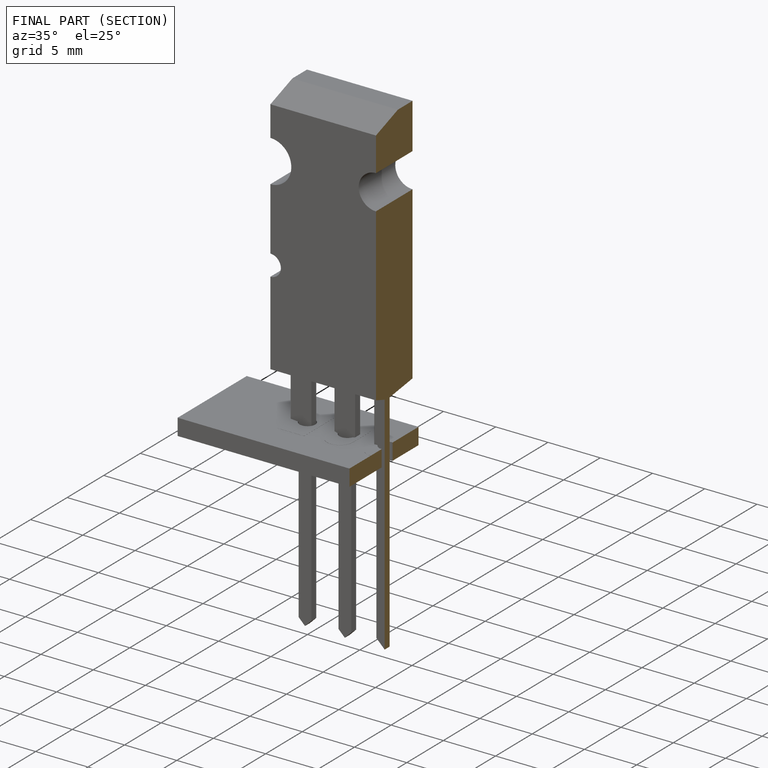
[diagram: finished part — half-section view (interior)]
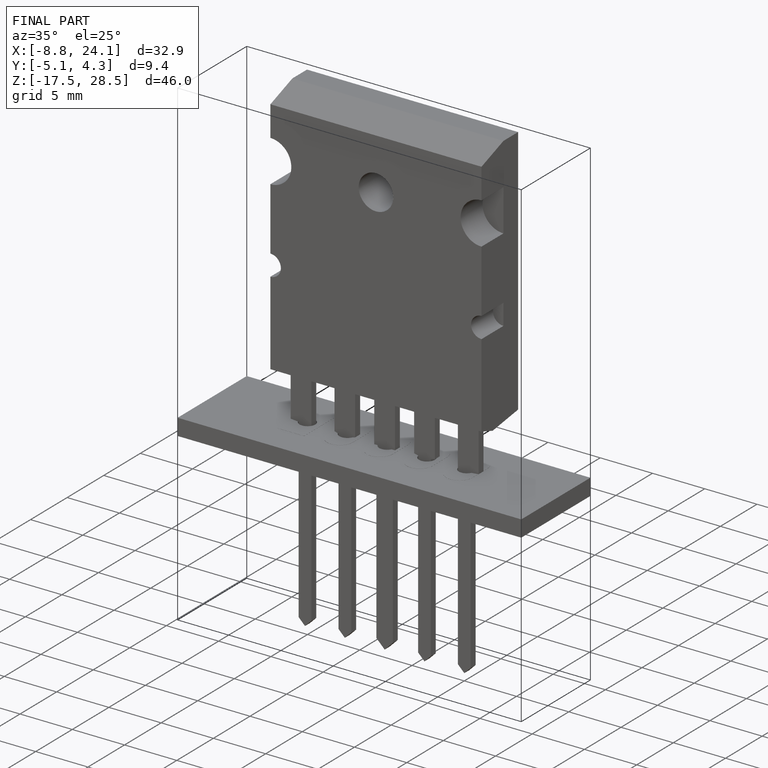
[diagram: finished part — iso view with bounding-box wireframe]
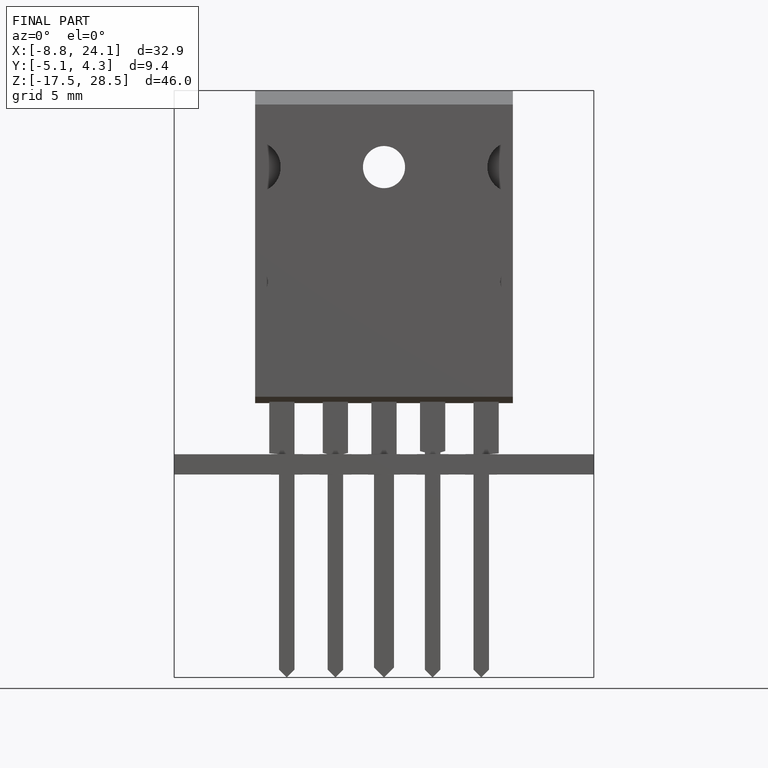
[diagram: finished part — front view with bounding-box wireframe]
